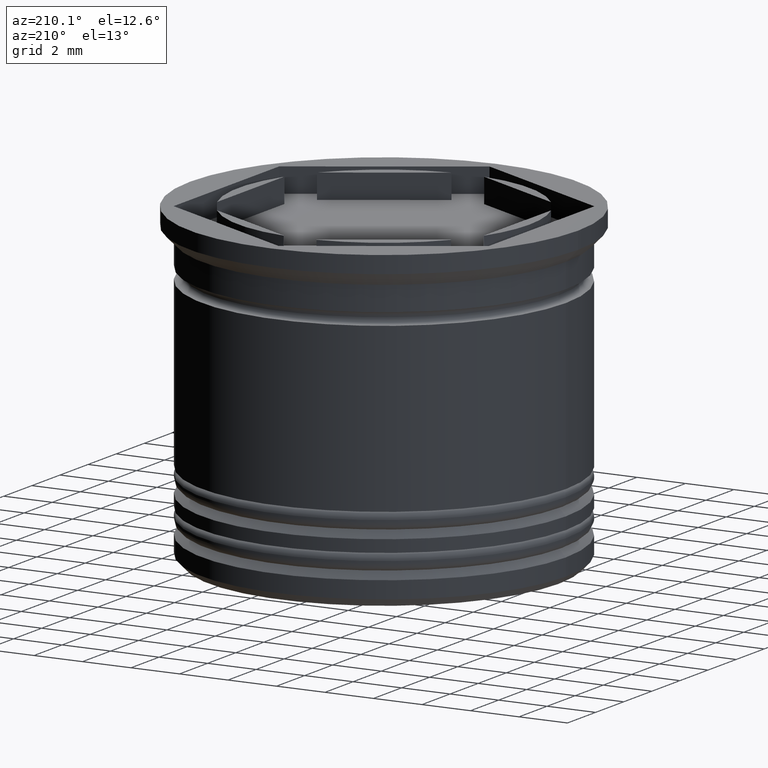
[diagram: clean part render]
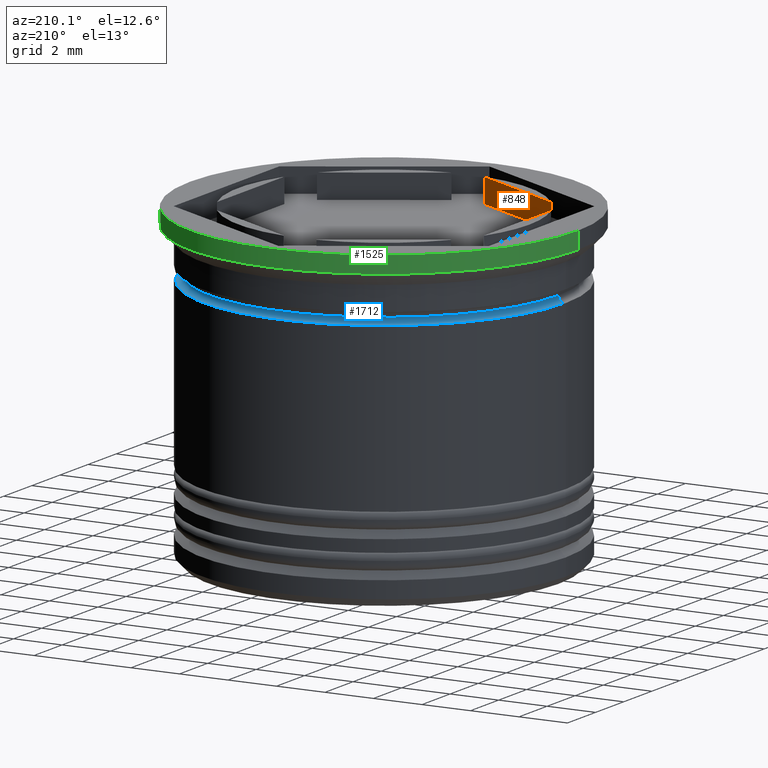
[diagram: same view with three faces highlighted in distinct colors, each labeled with its STEP entity id]
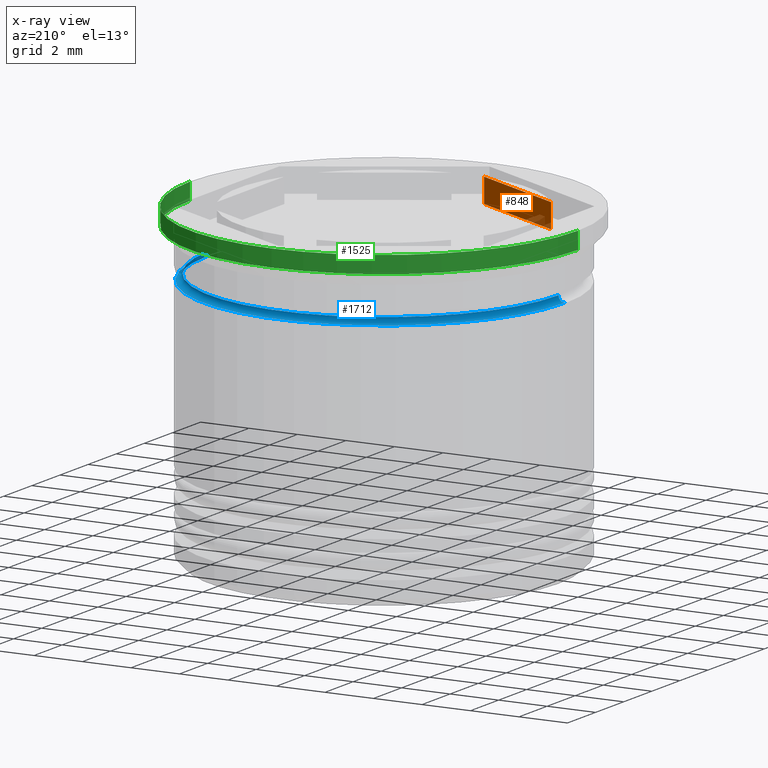
[diagram: x-ray of the same camera — body ghosted, the three highlighted faces saturated]
A machine part, auxiliary view with three faces highlighted in distinct colors.
The next image is the same camera in x-ray (body ghosted, the three faces saturated) — at least one of them is partly hidden behind the body in this view.
Their STEP definitions:

[orange] entity #848 — the highlighted planar face has unit normal (-0.5, -0.866, 0).
#11 = DIRECTION ( 'NONE',  ( -0.5000000000000001110, -0.8660254037844387076, 0.000000000000000000 ) ) ;
#45 = DIRECTION ( 'NONE',  ( -0.000000000000000000, -0.000000000000000000, -1.000000000000000000 ) ) ;
#390 = ORIENTED_EDGE ( 'NONE', *, *, #805, .T. ) ;
#480 = VECTOR ( 'NONE', #850, 999.9999999999998863 ) ;
#522 = DIRECTION ( 'NONE',  ( 0.000000000000000000, 0.000000000000000000, 1.000000000000000000 ) ) ;
#598 = VERTEX_POINT ( 'NONE', #1595 ) ;
#647 = EDGE_CURVE ( 'NONE', #960, #598, #1585, .T. ) ;
#693 = ORIENTED_EDGE ( 'NONE', *, *, #647, .F. ) ;
#766 = VECTOR ( 'NONE', #45, 1000.000000000000000 ) ;
#774 = CARTESIAN_POINT ( 'NONE',  ( -0.6733440342704825055, -5.962097601642592615, 16.97056274847714263 ) ) ;
#805 = EDGE_CURVE ( 'NONE', #1249, #598, #1210, .T. ) ;
#848 = ADVANCED_FACE ( 'NONE', ( #1831 ), #1841, .F. ) ;
#850 = DIRECTION ( 'NONE',  ( 0.8660254037844387076, -0.5000000000000001110, 0.000000000000000000 ) ) ;
#903 = CARTESIAN_POINT ( 'NONE',  ( -5.500000000000001776, -3.175426480542942631, -1.000000000000000888 ) ) ;
#921 = DIRECTION ( 'NONE',  ( -0.8660254037844387076, 0.5000000000000001110, 0.000000000000000000 ) ) ;
#960 = VERTEX_POINT ( 'NONE', #1579 ) ;
#1080 = CARTESIAN_POINT ( 'NONE',  ( -5.500000000000001776, -3.175426480542942631, -17.80277754817141656 ) ) ;
#1085 = CARTESIAN_POINT ( 'NONE',  ( -0.6733440342704841708, -5.962097601642594391, -1.000000000000000888 ) ) ;
#1130 = LINE ( 'NONE', #774, #1954 ) ;
#1156 = CARTESIAN_POINT ( 'NONE',  ( -0.6733440342704833936, -5.962097601642592615, 0.000000000000000000 ) ) ;
#1190 = ORIENTED_EDGE ( 'NONE', *, *, #1674, .F. ) ;
#1210 = LINE ( 'NONE', #903, #1889 ) ;
#1249 = VERTEX_POINT ( 'NONE', #1085 ) ;
#1389 = ORIENTED_EDGE ( 'NONE', *, *, #1771, .T. ) ;
#1443 = LINE ( 'NONE', #1903, #480 ) ;
#1540 = AXIS2_PLACEMENT_3D ( 'NONE', #1080, #11, #1695 ) ;
#1579 = CARTESIAN_POINT ( 'NONE',  ( -4.826655965729518272, -3.564181839986234834, 0.000000000000000000 ) ) ;
#1585 = LINE ( 'NONE', #1749, #766 ) ;
#1595 = CARTESIAN_POINT ( 'NONE',  ( -4.826655965729519160, -3.564181839986236611, -1.000000000000000888 ) ) ;
#1674 = EDGE_CURVE ( 'NONE', #1249, #1840, #1130, .T. ) ;
#1695 = DIRECTION ( 'NONE',  ( 0.8660254037844385966, -0.5000000000000000000, 0.000000000000000000 ) ) ;
#1749 = CARTESIAN_POINT ( 'NONE',  ( -4.826655965729519160, -3.564181839986234390, 16.97056274847714263 ) ) ;
#1771 = EDGE_CURVE ( 'NONE', #960, #1840, #1443, .T. ) ;
#1831 = FACE_OUTER_BOUND ( 'NONE', #1965, .T. ) ;
#1840 = VERTEX_POINT ( 'NONE', #1156 ) ;
#1841 = PLANE ( 'NONE',  #1540 ) ;
#1889 = VECTOR ( 'NONE', #921, 999.9999999999998863 ) ;
#1903 = CARTESIAN_POINT ( 'NONE',  ( -2.750000000000000888, -4.763139720814414169, 0.000000000000000000 ) ) ;
#1954 = VECTOR ( 'NONE', #522, 1000.000000000000000 ) ;
#1965 = EDGE_LOOP ( 'NONE', ( #1389, #1190, #390, #693 ) ) ;

[blue] entity #1712 — the highlighted toroidal blend (fillet) surface has major radius 7.45 mm and minor (blend) radius 0.25 mm.
#10 = DIRECTION ( 'NONE',  ( -0.000000000000000000, -0.000000000000000000, 1.000000000000000000 ) ) ;
#70 = ORIENTED_EDGE ( 'NONE', *, *, #1230, .F. ) ;
#72 = VERTEX_POINT ( 'NONE', #1700 ) ;
#203 = DIRECTION ( 'NONE',  ( 0.000000000000000000, 0.000000000000000000, -1.000000000000000000 ) ) ;
#238 = ORIENTED_EDGE ( 'NONE', *, *, #1880, .T. ) ;
#239 = VERTEX_POINT ( 'NONE', #1931 ) ;
#358 = EDGE_CURVE ( 'NONE', #72, #1149, #893, .T. ) ;
#365 = CARTESIAN_POINT ( 'NONE',  ( 0.000000000000000000, 0.000000000000000000, -2.449999999999999734 ) ) ;
#375 = DIRECTION ( 'NONE',  ( 1.000000000000000000, 0.000000000000000000, 0.000000000000000000 ) ) ;
#376 = AXIS2_PLACEMENT_3D ( 'NONE', #365, #689, #375 ) ;
#439 = CARTESIAN_POINT ( 'NONE',  ( 0.000000000000000000, 0.000000000000000000, -2.449999999999999734 ) ) ;
#618 = CARTESIAN_POINT ( 'NONE',  ( -7.450000000000001066, 9.123618653647781159E-16, -2.700000000000000178 ) ) ;
#689 = DIRECTION ( 'NONE',  ( -0.000000000000000000, -0.000000000000000000, 1.000000000000000000 ) ) ;
#716 = CARTESIAN_POINT ( 'NONE',  ( 7.450000000000001066, 0.000000000000000000, -2.449999999999999734 ) ) ;
#811 = CARTESIAN_POINT ( 'NONE',  ( 0.000000000000000000, 0.000000000000000000, -2.700000000000000178 ) ) ;
#878 = CARTESIAN_POINT ( 'NONE',  ( -7.450000000000001066, 9.123618653647781159E-16, -2.449999999999999734 ) ) ;
#893 = CIRCLE ( 'NONE', #1666, 0.2500000000000002220 ) ;
#901 = CIRCLE ( 'NONE', #1738, 7.450000000000001066 ) ;
#953 = DIRECTION ( 'NONE',  ( -1.000000000000000000, 0.000000000000000000, 0.000000000000000000 ) ) ;
#968 = AXIS2_PLACEMENT_3D ( 'NONE', #439, #10, #1839 ) ;
#999 = CIRCLE ( 'NONE', #968, 7.200000000000001066 ) ;
#1046 = DIRECTION ( 'NONE',  ( 1.224646799147353207E-16, 1.000000000000000000, 0.000000000000000000 ) ) ;
#1149 = VERTEX_POINT ( 'NONE', #618 ) ;
#1188 = AXIS2_PLACEMENT_3D ( 'NONE', #716, #1334, #1939 ) ;
#1230 = EDGE_CURVE ( 'NONE', #1149, #239, #901, .T. ) ;
#1277 = VERTEX_POINT ( 'NONE', #1583 ) ;
#1334 = DIRECTION ( 'NONE',  ( 0.000000000000000000, -1.000000000000000000, 0.000000000000000000 ) ) ;
#1356 = TOROIDAL_SURFACE ( 'NONE', #376, 7.450000000000001066, 0.2500000000000002220 ) ;
#1583 = CARTESIAN_POINT ( 'NONE',  ( 7.200000000000001066, 0.000000000000000000, -2.449999999999999734 ) ) ;
#1666 = AXIS2_PLACEMENT_3D ( 'NONE', #878, #1046, #1938 ) ;
#1700 = CARTESIAN_POINT ( 'NONE',  ( -7.200000000000001066, 8.817456953860942303E-16, -2.449999999999999734 ) ) ;
#1709 = CIRCLE ( 'NONE', #1188, 0.2500000000000002220 ) ;
#1712 = ADVANCED_FACE ( 'NONE', ( #1741 ), #1356, .F. ) ;
#1738 = AXIS2_PLACEMENT_3D ( 'NONE', #811, #203, #953 ) ;
#1741 = FACE_OUTER_BOUND ( 'NONE', #1966, .T. ) ;
#1818 = ORIENTED_EDGE ( 'NONE', *, *, #1909, .F. ) ;
#1839 = DIRECTION ( 'NONE',  ( 1.000000000000000000, 0.000000000000000000, 0.000000000000000000 ) ) ;
#1880 = EDGE_CURVE ( 'NONE', #1277, #239, #1709, .T. ) ;
#1909 = EDGE_CURVE ( 'NONE', #1277, #72, #999, .T. ) ;
#1931 = CARTESIAN_POINT ( 'NONE',  ( 7.450000000000001066, 0.000000000000000000, -2.700000000000000178 ) ) ;
#1936 = ORIENTED_EDGE ( 'NONE', *, *, #358, .F. ) ;
#1938 = DIRECTION ( 'NONE',  ( -1.000000000000000000, 1.224646799147357151E-16, 0.000000000000000000 ) ) ;
#1939 = DIRECTION ( 'NONE',  ( 0.000000000000000000, 0.000000000000000000, -1.000000000000000000 ) ) ;
#1966 = EDGE_LOOP ( 'NONE', ( #1818, #238, #70, #1936 ) ) ;

[green] entity #1525 — the highlighted cylindrical surface (partial cylindrical patch) has radius 8 mm, axis along (-0, -0, 1).
#38 = CARTESIAN_POINT ( 'NONE',  ( -8.000000000000000000, 9.797174393178825657E-16, -0.7000000000000005107 ) ) ;
#55 = AXIS2_PLACEMENT_3D ( 'NONE', #1401, #941, #1076 ) ;
#84 = VECTOR ( 'NONE', #913, 1000.000000000000000 ) ;
#193 = DIRECTION ( 'NONE',  ( -1.000000000000000000, 0.000000000000000000, 0.000000000000000000 ) ) ;
#213 = CARTESIAN_POINT ( 'NONE',  ( 0.000000000000000000, 0.000000000000000000, -0.7000000000000005107 ) ) ;
#240 = EDGE_CURVE ( 'NONE', #1271, #1911, #1796, .T. ) ;
#275 = EDGE_CURVE ( 'NONE', #907, #1052, #1517, .T. ) ;
#317 = CIRCLE ( 'NONE', #673, 8.000000000000000000 ) ;
#456 = CARTESIAN_POINT ( 'NONE',  ( -8.000000000000000000, 9.797174393178825657E-16, 0.000000000000000000 ) ) ;
#494 = CARTESIAN_POINT ( 'NONE',  ( 8.000000000000000000, 0.000000000000000000, -0.7000000000000005107 ) ) ;
#512 = CARTESIAN_POINT ( 'NONE',  ( 8.000000000000000000, 0.000000000000000000, 0.000000000000000000 ) ) ;
#524 = CARTESIAN_POINT ( 'NONE',  ( -8.000000000000000000, 9.797174393178825657E-16, 0.000000000000000000 ) ) ;
#537 = EDGE_CURVE ( 'NONE', #1052, #1911, #1145, .T. ) ;
#605 = DIRECTION ( 'NONE',  ( -0.000000000000000000, -0.000000000000000000, 1.000000000000000000 ) ) ;
#619 = ORIENTED_EDGE ( 'NONE', *, *, #1237, .T. ) ;
#673 = AXIS2_PLACEMENT_3D ( 'NONE', #213, #947, #193 ) ;
#772 = CARTESIAN_POINT ( 'NONE',  ( 8.000000000000000000, 0.000000000000000000, 0.000000000000000000 ) ) ;
#907 = VERTEX_POINT ( 'NONE', #494 ) ;
#913 = DIRECTION ( 'NONE',  ( -0.000000000000000000, -0.000000000000000000, 1.000000000000000000 ) ) ;
#918 = ORIENTED_EDGE ( 'NONE', *, *, #537, .F. ) ;
#941 = DIRECTION ( 'NONE',  ( -0.000000000000000000, -0.000000000000000000, 1.000000000000000000 ) ) ;
#947 = DIRECTION ( 'NONE',  ( -0.000000000000000000, -0.000000000000000000, 1.000000000000000000 ) ) ;
#1052 = VERTEX_POINT ( 'NONE', #512 ) ;
#1076 = DIRECTION ( 'NONE',  ( 1.000000000000000000, 0.000000000000000000, 0.000000000000000000 ) ) ;
#1092 = AXIS2_PLACEMENT_3D ( 'NONE', #1659, #605, #1376 ) ;
#1145 = CIRCLE ( 'NONE', #55, 8.000000000000000000 ) ;
#1167 = DIRECTION ( 'NONE',  ( -0.000000000000000000, -0.000000000000000000, 1.000000000000000000 ) ) ;
#1237 = EDGE_CURVE ( 'NONE', #907, #1271, #317, .T. ) ;
#1245 = EDGE_LOOP ( 'NONE', ( #619, #1925, #918, #1370 ) ) ;
#1271 = VERTEX_POINT ( 'NONE', #38 ) ;
#1336 = CYLINDRICAL_SURFACE ( 'NONE', #1092, 8.000000000000000000 ) ;
#1370 = ORIENTED_EDGE ( 'NONE', *, *, #275, .F. ) ;
#1376 = DIRECTION ( 'NONE',  ( 1.000000000000000000, 0.000000000000000000, 0.000000000000000000 ) ) ;
#1401 = CARTESIAN_POINT ( 'NONE',  ( 0.000000000000000000, 0.000000000000000000, 0.000000000000000000 ) ) ;
#1517 = LINE ( 'NONE', #772, #84 ) ;
#1518 = FACE_OUTER_BOUND ( 'NONE', #1245, .T. ) ;
#1525 = ADVANCED_FACE ( 'NONE', ( #1518 ), #1336, .T. ) ;
#1659 = CARTESIAN_POINT ( 'NONE',  ( 0.000000000000000000, 0.000000000000000000, 0.000000000000000000 ) ) ;
#1796 = LINE ( 'NONE', #524, #1916 ) ;
#1911 = VERTEX_POINT ( 'NONE', #456 ) ;
#1916 = VECTOR ( 'NONE', #1167, 1000.000000000000000 ) ;
#1925 = ORIENTED_EDGE ( 'NONE', *, *, #240, .T. ) ;